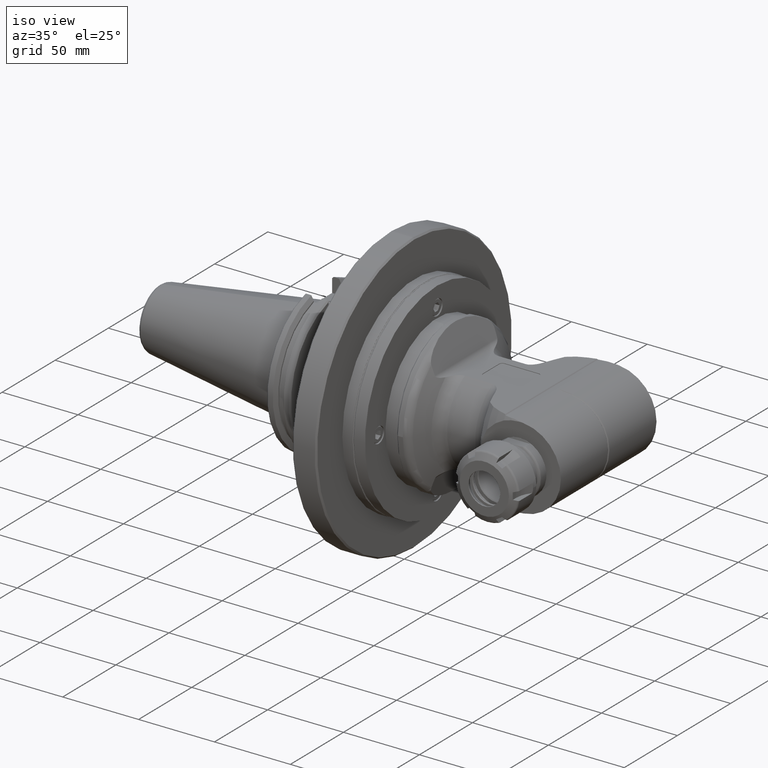
[diagram: clean part render]
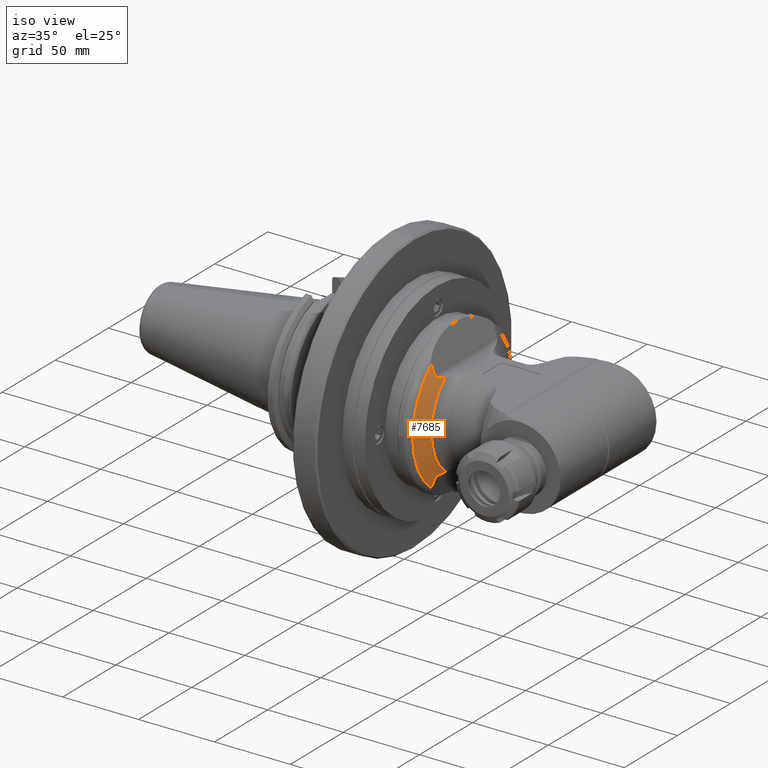
[diagram: same view with one face highlighted and labeled with its STEP entity id]
A machine part, iso view. The second image highlights one B-rep face of the part: STEP entity #7685.
In plain terms, the highlighted conical surface has half-angle 65 deg.
Its self-contained STEP definition (entity closure, byte-faithful):
#55=ELLIPSE('',#8277,50.3672702558906,29.5863002294594);
#56=ELLIPSE('',#8280,50.3672702558906,29.5863002294594);
#92=CONICAL_SURFACE('',#8278,41.8660726827,1.13446401379631);
#424=B_SPLINE_CURVE_WITH_KNOTS('',3,(#11609,#11610,#11611,#11612,#11613,
#11614,#11615,#11616,#11617,#11618,#11619,#11620,#11621,#11622,#11623,#11624),
 .UNSPECIFIED.,.F.,.F.,(4,2,2,2,2,2,2,4),(-2.96280115665136,-2.95768643160798,
-2.91208919967632,-2.86649196774465,-2.77174745046331,-2.67700293318197,
-2.4875138986193,-2.25250406855327),.UNSPECIFIED.);
#440=B_SPLINE_CURVE_WITH_KNOTS('',3,(#11998,#11999,#12000,#12001,#12002,
#12003,#12004,#12005,#12006,#12007,#12008,#12009,#12010,#12011,#12012,#12013),
 .UNSPECIFIED.,.F.,.F.,(4,2,2,2,2,2,2,4),(-9.59514006230822,-9.36013023215059,
-9.17064119758792,-9.07589668030658,-8.98115216302524,-8.93555493109357,
-8.88995769916191,-8.88484297411853),.UNSPECIFIED.);
#589=CIRCLE('',#8210,36.61905390607);
#621=CIRCLE('',#8279,47.11309145933);
#997=FACE_OUTER_BOUND('',#1482,.T.);
#1482=EDGE_LOOP('',(#5300,#5301,#5302,#5303,#5304,#5305));
#3171=VERTEX_POINT('',#11606);
#3172=VERTEX_POINT('',#11608);
#3174=VERTEX_POINT('',#11632);
#3240=VERTEX_POINT('',#11997);
#3247=VERTEX_POINT('',#12089);
#3248=VERTEX_POINT('',#12110);
#3943=EDGE_CURVE('',#3171,#3172,#424,.T.);
#3946=EDGE_CURVE('',#3172,#3174,#589,.T.);
#4028=EDGE_CURVE('',#3174,#3240,#440,.T.);
#4050=EDGE_CURVE('',#3247,#3171,#55,.T.);
#4051=EDGE_CURVE('',#3248,#3247,#621,.T.);
#4052=EDGE_CURVE('',#3240,#3248,#56,.T.);
#5300=ORIENTED_EDGE('',*,*,#3946,.F.);
#5301=ORIENTED_EDGE('',*,*,#3943,.F.);
#5302=ORIENTED_EDGE('',*,*,#4050,.F.);
#5303=ORIENTED_EDGE('',*,*,#4051,.F.);
#5304=ORIENTED_EDGE('',*,*,#4052,.F.);
#5305=ORIENTED_EDGE('',*,*,#4028,.F.);
#7685=ADVANCED_FACE('',(#997),#92,.T.);
#8210=AXIS2_PLACEMENT_3D('',#11633,#9138,#9139);
#8277=AXIS2_PLACEMENT_3D('',#12108,#9294,#9295);
#8278=AXIS2_PLACEMENT_3D('',#12109,#9296,#9297);
#8279=AXIS2_PLACEMENT_3D('',#12111,#9298,#9299);
#8280=AXIS2_PLACEMENT_3D('',#12112,#9300,#9301);
#9138=DIRECTION('center_axis',(1.,0.,0.));
#9139=DIRECTION('ref_axis',(0.,-0.639797587775472,0.768543457897266));
#9294=DIRECTION('center_axis',(0.939692620785897,0.,0.342020143325699));
#9295=DIRECTION('ref_axis',(-0.342020143325699,1.39349996950756E-15,0.939692620785897));
#9296=DIRECTION('center_axis',(-1.,0.,0.));
#9297=DIRECTION('ref_axis',(0.,-1.,0.));
#9298=DIRECTION('center_axis',(-1.,0.,0.));
#9299=DIRECTION('ref_axis',(0.,-1.,0.));
#9300=DIRECTION('center_axis',(0.939692620785897,0.,-0.342020143325699));
#9301=DIRECTION('ref_axis',(-0.342020143325699,3.16985680890781E-15,-0.939692620785897));
#11606=CARTESIAN_POINT('',(21.042059717778,-29.32212693045,30.6319194267));
#11608=CARTESIAN_POINT('',(23.739637576718,-23.42878235573,28.1433343139));
#11609=CARTESIAN_POINT('Ctrl Pts',(21.0420597177737,-29.3221269304433,30.631919426699));
#11610=CARTESIAN_POINT('Ctrl Pts',(21.0479744620108,-29.3207602586374,30.6156688004658));
#11611=CARTESIAN_POINT('Ctrl Pts',(21.0539377860192,-29.3190340016176,30.5996130290237));
#11612=CARTESIAN_POINT('Ctrl Pts',(21.1133495043143,-29.2986325774339,30.4426783205164));
#11613=CARTESIAN_POINT('Ctrl Pts',(21.1773919197034,-29.249346732277,30.2993398090731));
#11614=CARTESIAN_POINT('Ctrl Pts',(21.3117990365355,-29.1046306458268,30.0383141688465));
#11615=CARTESIAN_POINT('Ctrl Pts',(21.3820660952725,-29.0100510435127,29.9201061184463));
#11616=CARTESIAN_POINT('Ctrl Pts',(21.5797693822793,-28.7149196194402,29.6157163221687));
#11617=CARTESIAN_POINT('Ctrl Pts',(21.7070096664003,-28.4859175959178,29.4577382988407));
#11618=CARTESIAN_POINT('Ctrl Pts',(21.9571216555129,-28.0003306800713,29.1807555298384));
#11619=CARTESIAN_POINT('Ctrl Pts',(22.0797213060633,-27.7424335272339,29.0638111388053));
#11620=CARTESIAN_POINT('Ctrl Pts',(22.4446386638913,-26.9342653049124,28.7518069050939));
#11621=CARTESIAN_POINT('Ctrl Pts',(22.6829488590379,-26.3520915975708,28.5964207566113));
#11622=CARTESIAN_POINT('Ctrl Pts',(23.2048774886905,-24.9916302315601,28.3175745009368));
#11623=CARTESIAN_POINT('Ctrl Pts',(23.4826199044823,-24.2053160941099,28.2140547963752));
#11624=CARTESIAN_POINT('Ctrl Pts',(23.739637576711,-23.4287823557275,28.1433343139016));
#11632=CARTESIAN_POINT('',(23.739637577038,-23.42878235483,-28.1433343138));
#11633=CARTESIAN_POINT('Origin',(23.739637576718,0.,0.));
#11997=CARTESIAN_POINT('',(21.042059717778,-29.32212693045,-30.6319194267));
#11998=CARTESIAN_POINT('Ctrl Pts',(23.7396375770115,-23.4287823548195,-28.1433343138189));
#11999=CARTESIAN_POINT('Ctrl Pts',(23.4826199046987,-24.205316093497,-28.2140547962941));
#12000=CARTESIAN_POINT('Ctrl Pts',(23.2048774888031,-24.9916302312666,-28.3175745008766));
#12001=CARTESIAN_POINT('Ctrl Pts',(22.6829488590379,-26.3520915975708,-28.5964207566113));
#12002=CARTESIAN_POINT('Ctrl Pts',(22.4446386638913,-26.9342653049124,-28.7518069050939));
#12003=CARTESIAN_POINT('Ctrl Pts',(22.0797213060633,-27.7424335272339,-29.0638111388053));
#12004=CARTESIAN_POINT('Ctrl Pts',(21.9571216555129,-28.0003306800713,-29.1807555298384));
#12005=CARTESIAN_POINT('Ctrl Pts',(21.7070096664003,-28.4859175959178,-29.4577382988407));
#12006=CARTESIAN_POINT('Ctrl Pts',(21.5797693822793,-28.7149196194402,-29.6157163221687));
#12007=CARTESIAN_POINT('Ctrl Pts',(21.3820660952725,-29.0100510435127,-29.9201061184463));
#12008=CARTESIAN_POINT('Ctrl Pts',(21.3117990365355,-29.1046306458268,-30.0383141688465));
#12009=CARTESIAN_POINT('Ctrl Pts',(21.1773919197034,-29.249346732277,-30.2993398090731));
#12010=CARTESIAN_POINT('Ctrl Pts',(21.1133495043143,-29.2986325774339,-30.4426783205164));
#12011=CARTESIAN_POINT('Ctrl Pts',(21.0539377860192,-29.3190340016176,-30.5996130290237));
#12012=CARTESIAN_POINT('Ctrl Pts',(21.0479744620108,-29.3207602586374,-30.6156688004658));
#12013=CARTESIAN_POINT('Ctrl Pts',(21.0420597177737,-29.3221269304432,-30.631919426699));
#12089=CARTESIAN_POINT('',(18.8461875025882,-29.5857914047178,36.6650287525181));
#12108=CARTESIAN_POINT('Origin',(18.7451569433873,1.77635683940025E-14,
36.9426079340045));
#12109=CARTESIAN_POINT('Origin',(21.292912538688,0.,0.));
#12110=CARTESIAN_POINT('',(18.846187502345,-29.585791404499,-36.665028753365));
#12111=CARTESIAN_POINT('Origin',(18.846187500668,0.,0.));
#12112=CARTESIAN_POINT('Origin',(18.7451569433873,5.32907051820075E-14,
-36.9426079340045));